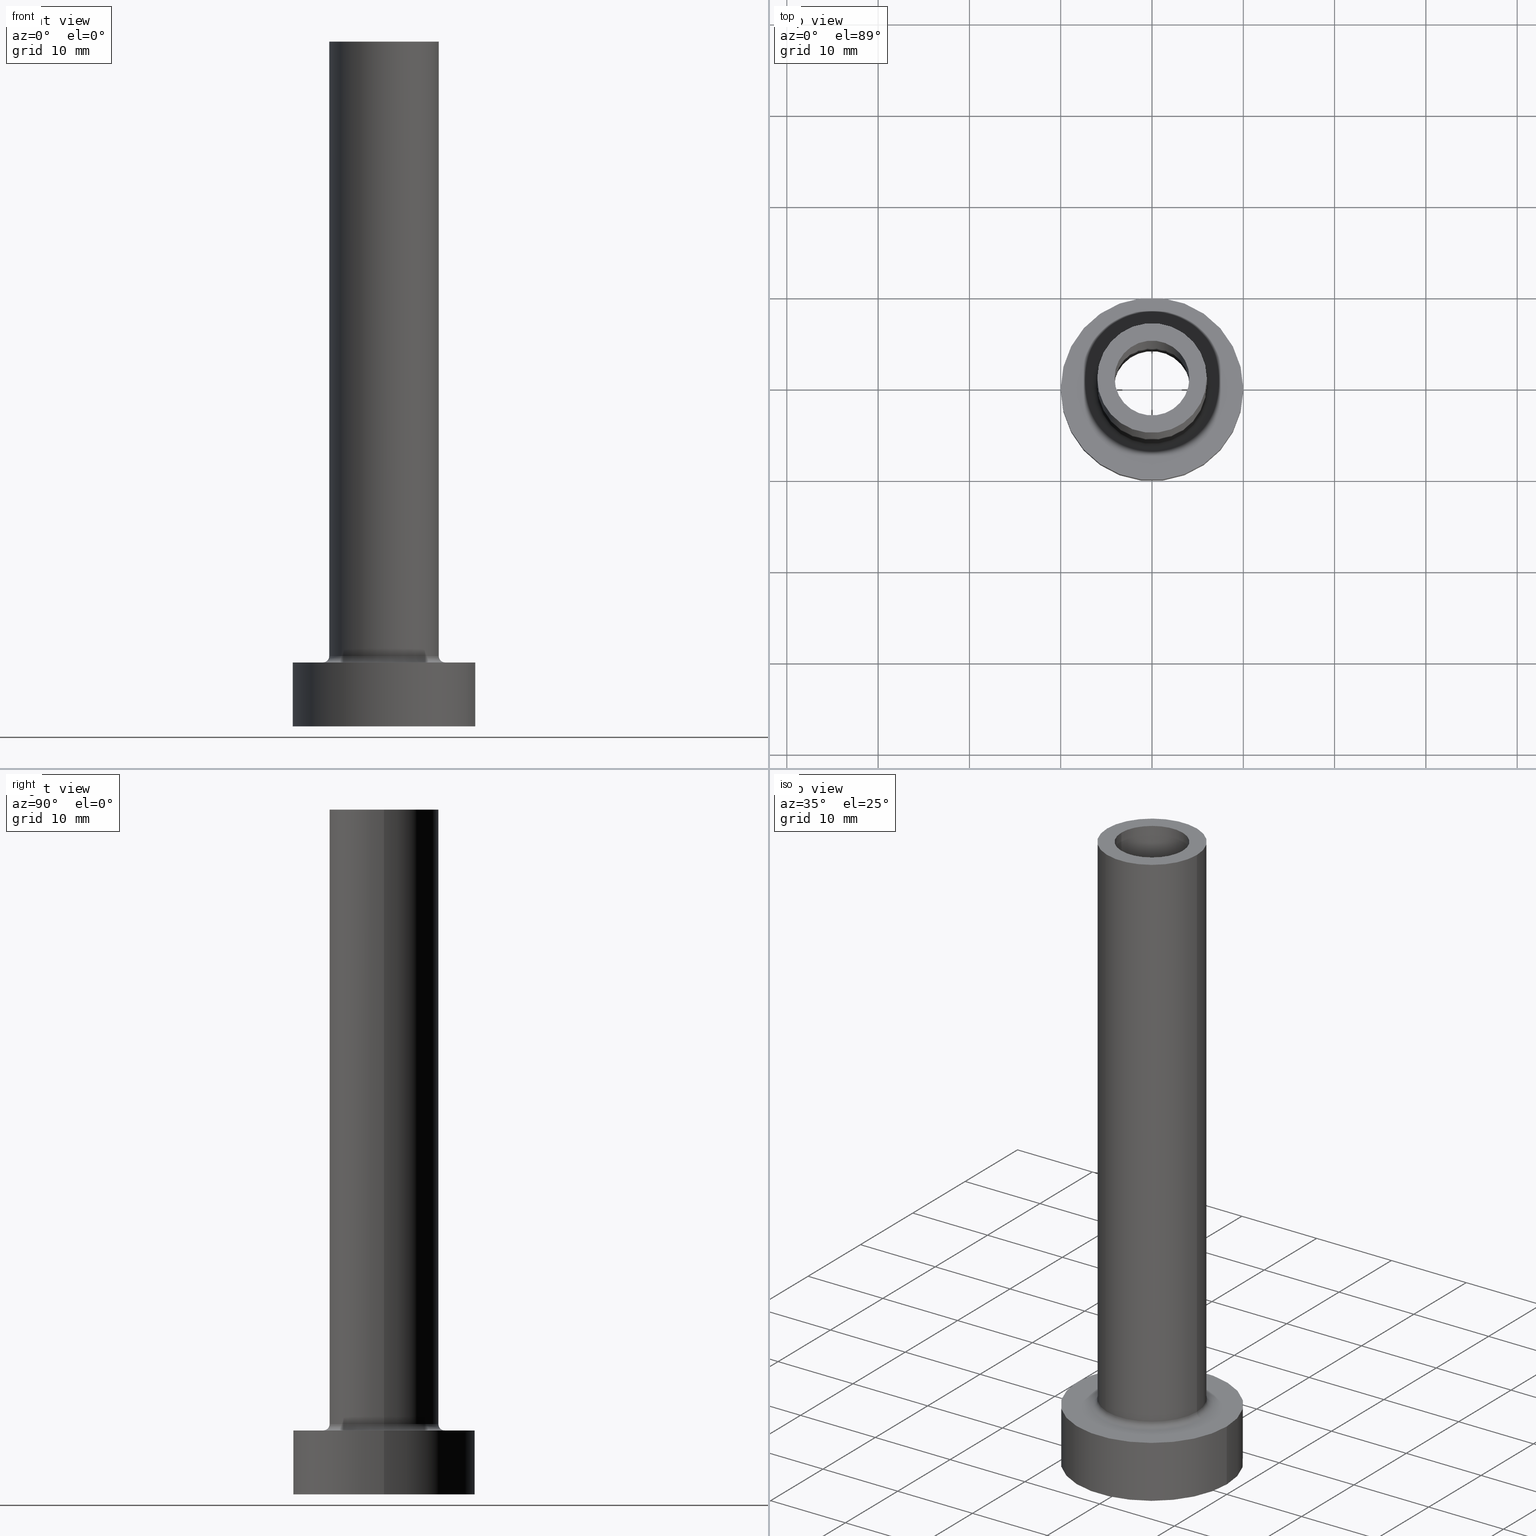
[diagram: canonical four-view strip — front | top / right | iso, engineering-drawing reading convention]
A machine part, canonical four-view strip (front | top / right | iso — engineering-drawing reading convention). The complete STEP part file that produces these views, byte-faithful:
ISO-10303-21;
HEADER;
FILE_DESCRIPTION (( 'STEP AP203' ),
    '1' );
FILE_NAME ('ef74.STEP',
    '2023-02-13T11:59:22',
    ( '' ),
    ( '' ),
    'SwSTEP 2.0',
    'SolidWorks 2019',
    '' );
FILE_SCHEMA (( 'CONFIG_CONTROL_DESIGN' ));
ENDSEC;

DATA;
#1 = EDGE_LOOP ( 'NONE', ( #144, #380 ) ) ;
#2 = AXIS2_PLACEMENT_3D ( 'NONE', #344, #457, #27 ) ;
#3 = APPLICATION_PROTOCOL_DEFINITION ( 'international standard', 'config_control_design', 1994, #97 ) ;
#4 = EDGE_LOOP ( 'NONE', ( #134, #103 ) ) ;
#5 = EDGE_CURVE ( 'NONE', #258, #30, #399, .T. ) ;
#6 = ORIENTED_EDGE ( 'NONE', *, *, #51, .F. ) ;
#7 = ORIENTED_EDGE ( 'NONE', *, *, #398, .F. ) ;
#8 = LINE ( 'NONE', #440, #222 ) ;
#9 = VECTOR ( 'NONE', #53, 1000.000000000000000 ) ;
#10 = SECURITY_CLASSIFICATION_LEVEL ( 'unclassified' ) ;
#11 = ORIENTED_EDGE ( 'NONE', *, *, #242, .F. ) ;
#12 = ORIENTED_EDGE ( 'NONE', *, *, #149, .F. ) ;
#13 = CALENDAR_DATE ( 2023, 13, 2 ) ;
#14 = ADVANCED_FACE ( 'NONE', ( #187, #79 ), #225, .F. ) ;
#15 = DIRECTION ( 'NONE',  ( 0.000000000000000000, 0.000000000000000000, 1.000000000000000000 ) ) ;
#16 = APPROVAL_ROLE ( '' ) ;
#17 = AXIS2_PLACEMENT_3D ( 'NONE', #108, #46, #397 ) ;
#18 = CARTESIAN_POINT ( 'NONE',  ( 6.700000000000001066, 0.000000000000000000, 7.699999999999998401 ) ) ;
#19 = APPROVAL_PERSON_ORGANIZATION ( #261, #315, #269 ) ;
#20 = ORIENTED_EDGE ( 'NONE', *, *, #224, .T. ) ;
#21 = DIRECTION ( 'NONE',  ( 1.000000000000000000, 0.000000000000000000, 0.000000000000000000 ) ) ;
#22 = CC_DESIGN_PERSON_AND_ORGANIZATION_ASSIGNMENT ( #161, #299, ( #287 ) ) ;
#23 = ORIENTED_EDGE ( 'NONE', *, *, #56, .F. ) ;
#24 = CARTESIAN_POINT ( 'NONE',  ( 0.000000000000000000, 0.000000000000000000, 7.000000000000000000 ) ) ;
#25 = EDGE_LOOP ( 'NONE', ( #249, #12, #191, #283 ) ) ;
#26 = AXIS2_PLACEMENT_3D ( 'NONE', #183, #394, #274 ) ;
#27 = DIRECTION ( 'NONE',  ( -1.000000000000000000, 0.000000000000000000, 0.000000000000000000 ) ) ;
#28 = AXIS2_PLACEMENT_3D ( 'NONE', #294, #167, #300 ) ;
#29 = CIRCLE ( 'NONE', #323, 4.250000000000000000 ) ;
#30 = VERTEX_POINT ( 'NONE', #77 ) ;
#31 = LINE ( 'NONE', #171, #336 ) ;
#32 = DIRECTION ( 'NONE',  ( 1.000000000000000000, 0.000000000000000000, -0.000000000000000000 ) ) ;
#33 = EDGE_LOOP ( 'NONE', ( #449, #130, #273, #107 ) ) ;
#34 = FACE_OUTER_BOUND ( 'NONE', #343, .T. ) ;
#35 = DIRECTION ( 'NONE',  ( 0.000000000000000000, 0.000000000000000000, -1.000000000000000000 ) ) ;
#36 = LINE ( 'NONE', #308, #379 ) ;
#37 = DIRECTION ( 'NONE',  ( -0.000000000000000000, -0.000000000000000000, -1.000000000000000000 ) ) ;
#38 = AXIS2_PLACEMENT_3D ( 'NONE', #377, #375, #267 ) ;
#39 = CC_DESIGN_SECURITY_CLASSIFICATION ( #237, ( #417 ) ) ;
#40 = CARTESIAN_POINT ( 'NONE',  ( 0.000000000000000000, 0.000000000000000000, 7.699999999999998401 ) ) ;
#41 = PERSON_AND_ORGANIZATION_ROLE ( 'creator' ) ;
#42 = AXIS2_PLACEMENT_3D ( 'NONE', #40, #426, #180 ) ;
#43 = EDGE_CURVE ( 'NONE', #414, #72, #155, .T. ) ;
#44 = PERSON ( 'NEUR�EN�', 'NEUR�EN�', 'NEUR�EN�', ('NEUR�EN�'), ('NEUR�EN�'), ('NEUR�EN�') ) ;
#45 = APPROVAL_STATUS ( 'not_yet_approved' ) ;
#46 = DIRECTION ( 'NONE',  ( -0.000000000000000000, -0.000000000000000000, -1.000000000000000000 ) ) ;
#47 = DIRECTION ( 'NONE',  ( -0.000000000000000000, -0.000000000000000000, -1.000000000000000000 ) ) ;
#48 = ORIENTED_EDGE ( 'NONE', *, *, #301, .F. ) ;
#49 = DIRECTION ( 'NONE',  ( 0.000000000000000000, 0.000000000000000000, -1.000000000000000000 ) ) ;
#50 = VERTEX_POINT ( 'NONE', #291 ) ;
#51 = EDGE_CURVE ( 'NONE', #112, #72, #248, .T. ) ;
#52 = APPROVAL_STATUS ( 'not_yet_approved' ) ;
#53 = DIRECTION ( 'NONE',  ( 0.000000000000000000, 0.000000000000000000, -1.000000000000000000 ) ) ;
#54 = DIRECTION ( 'NONE',  ( 0.000000000000000000, 0.000000000000000000, 1.000000000000000000 ) ) ;
#55 = ORIENTED_EDGE ( 'NONE', *, *, #210, .T. ) ;
#56 = EDGE_CURVE ( 'NONE', #204, #118, #233, .T. ) ;
#57 = PLANE ( 'NONE',  #356 ) ;
#58 = DIRECTION ( 'NONE',  ( 0.000000000000000000, 0.000000000000000000, 1.000000000000000000 ) ) ;
#59 = ORIENTED_EDGE ( 'NONE', *, *, #218, .F. ) ;
#60 = APPROVAL_DATE_TIME ( #175, #309 ) ;
#61 = VERTEX_POINT ( 'NONE', #359 ) ;
#62 = CIRCLE ( 'NONE', #276, 4.250000000000000000 ) ;
#63 = DIRECTION ( 'NONE',  ( 0.000000000000000000, 0.000000000000000000, 1.000000000000000000 ) ) ;
#64 = CARTESIAN_POINT ( 'NONE',  ( 6.700000000000001066, 0.000000000000000000, 6.999999999999999112 ) ) ;
#65 = ADVANCED_FACE ( 'NONE', ( #213, #354 ), #102, .F. ) ;
#66 = LINE ( 'NONE', #211, #446 ) ;
#67 = CARTESIAN_POINT ( 'NONE',  ( 0.000000000000000000, 0.000000000000000000, 30.00000000000001421 ) ) ;
#68 = CARTESIAN_POINT ( 'NONE',  ( -6.000000000000000888, 0.000000000000000000, 7.699999999999998401 ) ) ;
#69 = AXIS2_PLACEMENT_3D ( 'NONE', #282, #312, #143 ) ;
#70 = DIRECTION ( 'NONE',  ( -0.000000000000000000, -0.000000000000000000, -1.000000000000000000 ) ) ;
#71 = CARTESIAN_POINT ( 'NONE',  ( -10.00000000000000000, 0.000000000000000000, 0.000000000000000000 ) ) ;
#72 = VERTEX_POINT ( 'NONE', #68 ) ;
#73 = DIRECTION ( 'NONE',  ( -0.000000000000000000, -0.000000000000000000, -1.000000000000000000 ) ) ;
#74 = EDGE_CURVE ( 'NONE', #199, #204, #221, .T. ) ;
#75 = DATE_AND_TIME ( #435, #425 ) ;
#76 = FACE_OUTER_BOUND ( 'NONE', #25, .T. ) ;
#77 = CARTESIAN_POINT ( 'NONE',  ( 4.099999999999999645, 5.021051876504146399E-16, 75.00000000000001421 ) ) ;
#78 = APPROVAL_PERSON_ORGANIZATION ( #396, #100, #16 ) ;
#79 = FACE_OUTER_BOUND ( 'NONE', #4, .T. ) ;
#80 = DIRECTION ( 'NONE',  ( 1.000000000000000000, 0.000000000000000000, 0.000000000000000000 ) ) ;
#81 = CARTESIAN_POINT ( 'NONE',  ( 10.00000000000000000, 1.224646799147353256E-15, 0.000000000000000000 ) ) ;
#82 = TOROIDAL_SURFACE ( 'NONE', #345, 6.700000000000001066, 0.6999999999999999556 ) ;
#83 = PERSON_AND_ORGANIZATION ( #44, #147 ) ;
#84 = LOCAL_TIME ( 12, 59, 22.00000000000000000, #284 ) ;
#85 = CARTESIAN_POINT ( 'NONE',  ( 0.000000000000000000, 0.000000000000000000, 30.00000000000001421 ) ) ;
#86 = CC_DESIGN_PERSON_AND_ORGANIZATION_ASSIGNMENT ( #83, #182, ( #316 ) ) ;
#87 = FACE_OUTER_BOUND ( 'NONE', #196, .T. ) ;
#88 = CIRCLE ( 'NONE', #355, 0.7000000000000000666 ) ;
#89 = CARTESIAN_POINT ( 'NONE',  ( 0.000000000000000000, 0.000000000000000000, 7.000000000000000000 ) ) ;
#90 = ORIENTED_EDGE ( 'NONE', *, *, #365, .T. ) ;
#91 = VERTEX_POINT ( 'NONE', #64 ) ;
#92 =( LENGTH_UNIT ( ) NAMED_UNIT ( * ) SI_UNIT ( .MILLI., .METRE. ) );
#93 = ADVANCED_FACE ( 'NONE', ( #181 ), #387, .F. ) ;
#94 = CARTESIAN_POINT ( 'NONE',  ( 6.000000000000000888, 7.347880794884120722E-16, 7.699999999999998401 ) ) ;
#95 = DIRECTION ( 'NONE',  ( 0.000000000000000000, 0.000000000000000000, 1.000000000000000000 ) ) ;
#96 = AXIS2_PLACEMENT_3D ( 'NONE', #351, #101, #245 ) ;
#97 = APPLICATION_CONTEXT ( 'configuration controlled 3d designs of mechanical parts and assemblies' ) ;
#98 = CARTESIAN_POINT ( 'NONE',  ( -4.250000000000000000, 0.000000000000000000, 30.00000000000001421 ) ) ;
#99 = EDGE_LOOP ( 'NONE', ( #20, #90 ) ) ;
#100 = APPROVAL ( #52, 'NEUR�EN�' ) ;
#101 = DIRECTION ( 'NONE',  ( 0.000000000000000000, 0.000000000000000000, 1.000000000000000000 ) ) ;
#102 = PLANE ( 'NONE',  #307 ) ;
#103 = ORIENTED_EDGE ( 'NONE', *, *, #361, .F. ) ;
#104 = ORIENTED_EDGE ( 'NONE', *, *, #456, .T. ) ;
#105 = DIRECTION ( 'NONE',  ( 0.000000000000000000, 0.000000000000000000, 1.000000000000000000 ) ) ;
#106 = DIRECTION ( 'NONE',  ( 1.000000000000000000, 0.000000000000000000, 0.000000000000000000 ) ) ;
#107 = ORIENTED_EDGE ( 'NONE', *, *, #418, .F. ) ;
#108 = CARTESIAN_POINT ( 'NONE',  ( 0.000000000000000000, 0.000000000000000000, 75.00000000000001421 ) ) ;
#109 = DIRECTION ( 'NONE',  ( 1.000000000000000000, 0.000000000000000000, -0.000000000000000000 ) ) ;
#110 = AXIS2_PLACEMENT_3D ( 'NONE', #368, #49, #145 ) ;
#111 = CIRCLE ( 'NONE', #96, 6.000000000000000888 ) ;
#112 = VERTEX_POINT ( 'NONE', #94 ) ;
#113 = EDGE_CURVE ( 'NONE', #169, #112, #244, .T. ) ;
#114 = FACE_OUTER_BOUND ( 'NONE', #168, .T. ) ;
#115 = CALENDAR_DATE ( 2023, 13, 2 ) ;
#116 = DIRECTION ( 'NONE',  ( -1.000000000000000000, 1.224646799147353454E-16, 0.000000000000000000 ) ) ;
#117 = AXIS2_PLACEMENT_3D ( 'NONE', #401, #405, #109 ) ;
#118 = VERTEX_POINT ( 'NONE', #71 ) ;
#119 = MECHANICAL_CONTEXT ( 'NONE', #97, 'mechanical' ) ;
#120 = AXIS2_PLACEMENT_3D ( 'NONE', #137, #70, #459 ) ;
#121 = CARTESIAN_POINT ( 'NONE',  ( 0.000000000000000000, 0.000000000000000000, 0.000000000000000000 ) ) ;
#122 = ADVANCED_FACE ( 'NONE', ( #460 ), #82, .F. ) ;
#123 = ORIENTED_EDGE ( 'NONE', *, *, #56, .T. ) ;
#124 = MANIFOLD_SOLID_BREP ( 'Odebrat vysunut�m4', #271 ) ;
#125 = DATE_TIME_ROLE ( 'creation_date' ) ;
#126 = DIRECTION ( 'NONE',  ( 0.000000000000000000, 0.000000000000000000, 1.000000000000000000 ) ) ;
#127 = ORIENTED_EDGE ( 'NONE', *, *, #270, .T. ) ;
#128 = APPROVAL_STATUS ( 'not_yet_approved' ) ;
#129 = FACE_BOUND ( 'NONE', #268, .T. ) ;
#130 = ORIENTED_EDGE ( 'NONE', *, *, #423, .T. ) ;
#131 = COORDINATED_UNIVERSAL_TIME_OFFSET ( 1, 0, .AHEAD. ) ;
#132 = CARTESIAN_POINT ( 'NONE',  ( -10.00000000000000000, 0.000000000000000000, 7.000000000000000000 ) ) ;
#133 = AXIS2_PLACEMENT_3D ( 'NONE', #138, #275, #348 ) ;
#134 = ORIENTED_EDGE ( 'NONE', *, *, #210, .F. ) ;
#135 = PERSON_AND_ORGANIZATION ( #44, #147 ) ;
#136 = ADVANCED_FACE ( 'NONE', ( #281 ), #349, .F. ) ;
#137 = CARTESIAN_POINT ( 'NONE',  ( 0.000000000000000000, 0.000000000000000000, 7.000000000000000000 ) ) ;
#138 = CARTESIAN_POINT ( 'NONE',  ( 0.000000000000000000, 0.000000000000000000, 7.699999999999998401 ) ) ;
#139 = DIRECTION ( 'NONE',  ( 1.000000000000000000, 0.000000000000000000, 0.000000000000000000 ) ) ;
#140 = AXIS2_PLACEMENT_3D ( 'NONE', #189, #406, #80 ) ;
#141 = CC_DESIGN_APPROVAL ( #309, ( #237 ) ) ;
#142 = EDGE_CURVE ( 'NONE', #288, #370, #62, .T. ) ;
#143 = DIRECTION ( 'NONE',  ( 1.000000000000000000, 0.000000000000000000, -0.000000000000000000 ) ) ;
#144 = ORIENTED_EDGE ( 'NONE', *, *, #263, .F. ) ;
#145 = DIRECTION ( 'NONE',  ( -1.000000000000000000, 0.000000000000000000, 0.000000000000000000 ) ) ;
#146 = VERTEX_POINT ( 'NONE', #318 ) ;
#147 = ORGANIZATION ( 'NEUR�EN�', 'NEUR�EN�', '' ) ;
#148 = DIRECTION ( 'NONE',  ( 1.000000000000000000, 0.000000000000000000, 0.000000000000000000 ) ) ;
#149 = EDGE_CURVE ( 'NONE', #414, #169, #362, .T. ) ;
#150 = CARTESIAN_POINT ( 'NONE',  ( 0.000000000000000000, 0.000000000000000000, 0.000000000000000000 ) ) ;
#151 = ORIENTED_EDGE ( 'NONE', *, *, #218, .T. ) ;
#152 = ORIENTED_EDGE ( 'NONE', *, *, #142, .T. ) ;
#153 = VERTEX_POINT ( 'NONE', #193 ) ;
#154 = CC_DESIGN_PERSON_AND_ORGANIZATION_ASSIGNMENT ( #157, #293, ( #237 ) ) ;
#155 = LINE ( 'NONE', #367, #197 ) ;
#156 = VERTEX_POINT ( 'NONE', #81 ) ;
#157 = PERSON_AND_ORGANIZATION ( #44, #147 ) ;
#158 = VERTEX_POINT ( 'NONE', #259 ) ;
#159 = ADVANCED_FACE ( 'NONE', ( #76 ), #364, .T. ) ;
#160 = FACE_OUTER_BOUND ( 'NONE', #220, .T. ) ;
#161 = PERSON_AND_ORGANIZATION ( #44, #147 ) ;
#162 = AXIS2_PLACEMENT_3D ( 'NONE', #461, #105, #106 ) ;
#163 = TOROIDAL_SURFACE ( 'NONE', #133, 6.700000000000001066, 0.6999999999999999556 ) ;
#164 = APPLICATION_CONTEXT ( 'configuration controlled 3d designs of mechanical parts and assemblies' ) ;
#165 = CARTESIAN_POINT ( 'NONE',  ( 4.099999999999999645, 5.021051876504146399E-16, 75.00000000000001421 ) ) ;
#166 = ORIENTED_EDGE ( 'NONE', *, *, #423, .F. ) ;
#167 = DIRECTION ( 'NONE',  ( -0.000000000000000000, -0.000000000000000000, -1.000000000000000000 ) ) ;
#168 = EDGE_LOOP ( 'NONE', ( #341, #152, #350, #328 ) ) ;
#169 = VERTEX_POINT ( 'NONE', #366 ) ;
#170 = CIRCLE ( 'NONE', #433, 0.7000000000000000666 ) ;
#171 = CARTESIAN_POINT ( 'NONE',  ( 4.250000000000000000, 5.204748896376249713E-16, 42.02081528017131973 ) ) ;
#172 = DESIGN_CONTEXT ( 'detailed design', #164, 'design' ) ;
#173 =( GEOMETRIC_REPRESENTATION_CONTEXT ( 3 ) GLOBAL_UNCERTAINTY_ASSIGNED_CONTEXT ( ( #231 ) ) GLOBAL_UNIT_ASSIGNED_CONTEXT ( ( #92, #430, #317 ) ) REPRESENTATION_CONTEXT ( 'NONE', 'WORKASPACE' ) );
#174 = DIRECTION ( 'NONE',  ( 0.000000000000000000, 0.000000000000000000, 1.000000000000000000 ) ) ;
#175 = DATE_AND_TIME ( #240, #279 ) ;
#176 = EDGE_CURVE ( 'NONE', #158, #61, #424, .T. ) ;
#177 = DIRECTION ( 'NONE',  ( -0.000000000000000000, -0.000000000000000000, -1.000000000000000000 ) ) ;
#178 = AXIS2_PLACEMENT_3D ( 'NONE', #381, #335, #21 ) ;
#179 = AXIS2_PLACEMENT_3D ( 'NONE', #253, #219, #148 ) ;
#180 = DIRECTION ( 'NONE',  ( 1.000000000000000000, 0.000000000000000000, 0.000000000000000000 ) ) ;
#181 = FACE_OUTER_BOUND ( 'NONE', #33, .T. ) ;
#182 = PERSON_AND_ORGANIZATION_ROLE ( 'design_owner' ) ;
#183 = CARTESIAN_POINT ( 'NONE',  ( 0.000000000000000000, 0.000000000000000000, 7.000000000000000000 ) ) ;
#184 = EDGE_CURVE ( 'NONE', #258, #50, #8, .T. ) ;
#185 = VECTOR ( 'NONE', #37, 1000.000000000000000 ) ;
#186 = AXIS2_PLACEMENT_3D ( 'NONE', #306, #455, #310 ) ;
#187 = FACE_BOUND ( 'NONE', #1, .T. ) ;
#188 = EDGE_CURVE ( 'NONE', #50, #146, #278, .T. ) ;
#189 = CARTESIAN_POINT ( 'NONE',  ( 0.000000000000000000, 0.000000000000000000, 30.00000000000001421 ) ) ;
#190 = CIRCLE ( 'NONE', #178, 10.00000000000000000 ) ;
#191 = ORIENTED_EDGE ( 'NONE', *, *, #43, .T. ) ;
#192 = CALENDAR_DATE ( 2023, 13, 2 ) ;
#193 = CARTESIAN_POINT ( 'NONE',  ( -6.700000000000001066, 8.205133554287267548E-16, 6.999999999999999112 ) ) ;
#194 = EDGE_LOOP ( 'NONE', ( #48, #295 ) ) ;
#195 = CARTESIAN_POINT ( 'NONE',  ( 4.250000000000000000, 5.204748896376249713E-16, 30.00000000000001421 ) ) ;
#196 = EDGE_LOOP ( 'NONE', ( #226, #59, #123, #55 ) ) ;
#197 = VECTOR ( 'NONE', #47, 1000.000000000000000 ) ;
#198 = DIRECTION ( 'NONE',  ( 1.000000000000000000, 0.000000000000000000, 0.000000000000000000 ) ) ;
#199 = VERTEX_POINT ( 'NONE', #325 ) ;
#200 = DIRECTION ( 'NONE',  ( -0.000000000000000000, -0.000000000000000000, -1.000000000000000000 ) ) ;
#201 = ORIENTED_EDGE ( 'NONE', *, *, #365, .F. ) ;
#202 = FACE_OUTER_BOUND ( 'NONE', #331, .T. ) ;
#203 = ADVANCED_FACE ( 'NONE', ( #114 ), #227, .F. ) ;
#204 = VERTEX_POINT ( 'NONE', #132 ) ;
#205 = DIRECTION ( 'NONE',  ( 1.224646799147353207E-16, 1.000000000000000000, -0.000000000000000000 ) ) ;
#206 = ORIENTED_EDGE ( 'NONE', *, *, #184, .F. ) ;
#207 = CARTESIAN_POINT ( 'NONE',  ( 0.000000000000000000, 0.000000000000000000, 75.00000000000001421 ) ) ;
#208 = LOCAL_TIME ( 12, 59, 22.00000000000000000, #229 ) ;
#209 = CARTESIAN_POINT ( 'NONE',  ( 6.000000000000000888, 7.347880794884120722E-16, 75.00000000000001421 ) ) ;
#210 = EDGE_CURVE ( 'NONE', #118, #156, #190, .T. ) ;
#211 = CARTESIAN_POINT ( 'NONE',  ( -4.250000000000000000, 0.000000000000000000, 42.02081528017131973 ) ) ;
#212 = FACE_OUTER_BOUND ( 'NONE', #450, .T. ) ;
#213 = FACE_BOUND ( 'NONE', #232, .T. ) ;
#214 = FACE_OUTER_BOUND ( 'NONE', #265, .T. ) ;
#215 = CIRCLE ( 'NONE', #228, 4.250000000000000000 ) ;
#216 = APPROVAL_DATE_TIME ( #412, #315 ) ;
#217 = CARTESIAN_POINT ( 'NONE',  ( 0.000000000000000000, 0.000000000000000000, 7.699999999999998401 ) ) ;
#218 = EDGE_CURVE ( 'NONE', #204, #199, #378, .T. ) ;
#219 = DIRECTION ( 'NONE',  ( 0.000000000000000000, 0.000000000000000000, 1.000000000000000000 ) ) ;
#220 = EDGE_LOOP ( 'NONE', ( #292, #239 ) ) ;
#221 = CIRCLE ( 'NONE', #26, 10.00000000000000000 ) ;
#222 = VECTOR ( 'NONE', #404, 1000.000000000000000 ) ;
#223 = CC_DESIGN_APPROVAL ( #100, ( #287 ) ) ;
#224 = EDGE_CURVE ( 'NONE', #91, #153, #236, .T. ) ;
#225 = PLANE ( 'NONE',  #117 ) ;
#226 = ORIENTED_EDGE ( 'NONE', *, *, #456, .F. ) ;
#227 = CYLINDRICAL_SURFACE ( 'NONE', #110, 4.250000000000000000 ) ;
#228 = AXIS2_PLACEMENT_3D ( 'NONE', #121, #372, #198 ) ;
#229 = COORDINATED_UNIVERSAL_TIME_OFFSET ( 1, 0, .AHEAD. ) ;
#230 = CIRCLE ( 'NONE', #42, 6.000000000000000888 ) ;
#231 = UNCERTAINTY_MEASURE_WITH_UNIT (LENGTH_MEASURE( 1.000000000000000082E-05 ), #92, 'distance_accuracy_value', 'NONE');
#232 = EDGE_LOOP ( 'NONE', ( #420, #298 ) ) ;
#233 = LINE ( 'NONE', #340, #305 ) ;
#234 = CARTESIAN_POINT ( 'NONE',  ( -6.700000000000001066, 8.205133554287267548E-16, 7.699999999999998401 ) ) ;
#235 = SHAPE_DEFINITION_REPRESENTATION ( #427, #429 ) ;
#236 = CIRCLE ( 'NONE', #38, 6.700000000000001066 ) ;
#237 = SECURITY_CLASSIFICATION ( '', '', #10 ) ;
#238 = CC_DESIGN_PERSON_AND_ORGANIZATION_ASSIGNMENT ( #286, #329, ( #417 ) ) ;
#239 = ORIENTED_EDGE ( 'NONE', *, *, #374, .T. ) ;
#240 = CALENDAR_DATE ( 2023, 13, 2 ) ;
#241 = DIRECTION ( 'NONE',  ( 0.000000000000000000, 0.000000000000000000, 1.000000000000000000 ) ) ;
#242 = EDGE_CURVE ( 'NONE', #112, #91, #170, .T. ) ;
#243 = CIRCLE ( 'NONE', #285, 10.00000000000000000 ) ;
#244 = LINE ( 'NONE', #209, #185 ) ;
#245 = DIRECTION ( 'NONE',  ( 1.000000000000000000, 0.000000000000000000, 0.000000000000000000 ) ) ;
#246 = CARTESIAN_POINT ( 'NONE',  ( 0.000000000000000000, 0.000000000000000000, 0.000000000000000000 ) ) ;
#247 = DIRECTION ( 'NONE',  ( 1.000000000000000000, 0.000000000000000000, 0.000000000000000000 ) ) ;
#248 = CIRCLE ( 'NONE', #256, 6.000000000000000888 ) ;
#249 = ORIENTED_EDGE ( 'NONE', *, *, #113, .F. ) ;
#250 = CARTESIAN_POINT ( 'NONE',  ( -6.000000000000000888, 0.000000000000000000, 75.00000000000001421 ) ) ;
#251 = EDGE_CURVE ( 'NONE', #72, #153, #88, .T. ) ;
#252 = DIRECTION ( 'NONE',  ( -1.000000000000000000, 0.000000000000000000, 0.000000000000000000 ) ) ;
#253 = CARTESIAN_POINT ( 'NONE',  ( 0.000000000000000000, 0.000000000000000000, 0.000000000000000000 ) ) ;
#254 = ORIENTED_EDGE ( 'NONE', *, *, #361, .T. ) ;
#255 = ADVANCED_FACE ( 'NONE', ( #332 ), #410, .T. ) ;
#256 = AXIS2_PLACEMENT_3D ( 'NONE', #454, #54, #304 ) ;
#257 = AXIS2_PLACEMENT_3D ( 'NONE', #67, #63, #139 ) ;
#258 = VERTEX_POINT ( 'NONE', #443 ) ;
#259 = CARTESIAN_POINT ( 'NONE',  ( 4.250000000000000000, 5.204748896376249713E-16, 0.000000000000000000 ) ) ;
#260 = EDGE_LOOP ( 'NONE', ( #272, #444, #383, #330 ) ) ;
#261 = PERSON_AND_ORGANIZATION ( #44, #147 ) ;
#262 = AXIS2_PLACEMENT_3D ( 'NONE', #311, #35, #428 ) ;
#263 = EDGE_CURVE ( 'NONE', #61, #158, #215, .T. ) ;
#264 = LINE ( 'NONE', #165, #9 ) ;
#265 = EDGE_LOOP ( 'NONE', ( #360, #127, #432, #206 ) ) ;
#266 = CC_DESIGN_APPROVAL ( #315, ( #417 ) ) ;
#267 = DIRECTION ( 'NONE',  ( 1.000000000000000000, 0.000000000000000000, 0.000000000000000000 ) ) ;
#268 = EDGE_LOOP ( 'NONE', ( #337, #166 ) ) ;
#269 = APPROVAL_ROLE ( '' ) ;
#270 = EDGE_CURVE ( 'NONE', #30, #146, #264, .T. ) ;
#271 = CLOSED_SHELL ( 'NONE', ( #409, #136, #122, #334, #255, #327, #388, #14, #159, #321, #436, #203, #65, #93 ) ) ;
#272 = ORIENTED_EDGE ( 'NONE', *, *, #301, .T. ) ;
#273 = ORIENTED_EDGE ( 'NONE', *, *, #184, .T. ) ;
#274 = DIRECTION ( 'NONE',  ( 1.000000000000000000, 0.000000000000000000, 0.000000000000000000 ) ) ;
#275 = DIRECTION ( 'NONE',  ( 0.000000000000000000, 0.000000000000000000, 1.000000000000000000 ) ) ;
#276 = AXIS2_PLACEMENT_3D ( 'NONE', #458, #392, #357 ) ;
#277 = CARTESIAN_POINT ( 'NONE',  ( 0.000000000000000000, 0.000000000000000000, 75.00000000000001421 ) ) ;
#278 = CIRCLE ( 'NONE', #140, 4.099999999999999645 ) ;
#279 = LOCAL_TIME ( 12, 59, 22.00000000000000000, #131 ) ;
#280 = CYLINDRICAL_SURFACE ( 'NONE', #2, 4.099999999999999645 ) ;
#281 = FACE_OUTER_BOUND ( 'NONE', #260, .T. ) ;
#282 = CARTESIAN_POINT ( 'NONE',  ( 0.000000000000000000, 0.000000000000000000, 7.000000000000000000 ) ) ;
#283 = ORIENTED_EDGE ( 'NONE', *, *, #398, .T. ) ;
#284 = COORDINATED_UNIVERSAL_TIME_OFFSET ( 1, 0, .AHEAD. ) ;
#285 = AXIS2_PLACEMENT_3D ( 'NONE', #246, #241, #393 ) ;
#286 = PERSON_AND_ORGANIZATION ( #44, #147 ) ;
#287 = PRODUCT_DEFINITION ( 'NEZN�M�', '', #417, #172 ) ;
#288 = VERTEX_POINT ( 'NONE', #195 ) ;
#289 = DIRECTION ( 'NONE',  ( 1.000000000000000000, 0.000000000000000000, 0.000000000000000000 ) ) ;
#290 = DIRECTION ( 'NONE',  ( 0.000000000000000000, 0.000000000000000000, 1.000000000000000000 ) ) ;
#291 = CARTESIAN_POINT ( 'NONE',  ( -4.099999999999999645, 0.000000000000000000, 30.00000000000001421 ) ) ;
#292 = ORIENTED_EDGE ( 'NONE', *, *, #149, .T. ) ;
#293 = PERSON_AND_ORGANIZATION_ROLE ( 'classification_officer' ) ;
#294 = CARTESIAN_POINT ( 'NONE',  ( 0.000000000000000000, 0.000000000000000000, 7.000000000000000000 ) ) ;
#295 = ORIENTED_EDGE ( 'NONE', *, *, #142, .F. ) ;
#296 = CARTESIAN_POINT ( 'NONE',  ( 0.000000000000000000, 0.000000000000000000, 75.00000000000001421 ) ) ;
#297 = CIRCLE ( 'NONE', #363, 4.099999999999999645 ) ;
#298 = ORIENTED_EDGE ( 'NONE', *, *, #418, .T. ) ;
#299 = PERSON_AND_ORGANIZATION_ROLE ( 'creator' ) ;
#300 = DIRECTION ( 'NONE',  ( -1.000000000000000000, 0.000000000000000000, 0.000000000000000000 ) ) ;
#301 = EDGE_CURVE ( 'NONE', #370, #288, #29, .T. ) ;
#302 = ORIENTED_EDGE ( 'NONE', *, *, #251, .T. ) ;
#303 = CYLINDRICAL_SURFACE ( 'NONE', #434, 10.00000000000000000 ) ;
#304 = DIRECTION ( 'NONE',  ( 1.000000000000000000, 0.000000000000000000, 0.000000000000000000 ) ) ;
#305 = VECTOR ( 'NONE', #390, 1000.000000000000000 ) ;
#306 = CARTESIAN_POINT ( 'NONE',  ( 0.000000000000000000, 0.000000000000000000, 75.00000000000001421 ) ) ;
#307 = AXIS2_PLACEMENT_3D ( 'NONE', #431, #385, #32 ) ;
#308 = CARTESIAN_POINT ( 'NONE',  ( 10.00000000000000000, 1.224646799147353256E-15, 7.000000000000000000 ) ) ;
#309 = APPROVAL ( #128, 'NEUR�EN�' ) ;
#310 = DIRECTION ( 'NONE',  ( -1.000000000000000000, 0.000000000000000000, 0.000000000000000000 ) ) ;
#311 = CARTESIAN_POINT ( 'NONE',  ( 0.000000000000000000, 0.000000000000000000, 42.02081528017131973 ) ) ;
#312 = DIRECTION ( 'NONE',  ( 0.000000000000000000, 0.000000000000000000, 1.000000000000000000 ) ) ;
#313 = ORIENTED_EDGE ( 'NONE', *, *, #374, .F. ) ;
#314 = CIRCLE ( 'NONE', #120, 6.700000000000001066 ) ;
#315 = APPROVAL ( #45, 'NEUR�EN�' ) ;
#316 = PRODUCT ( 'ef74', 'ef74', '', ( #119 ) ) ;
#317 =( NAMED_UNIT ( * ) SI_UNIT ( $, .STERADIAN. ) SOLID_ANGLE_UNIT ( ) );
#318 = CARTESIAN_POINT ( 'NONE',  ( 4.099999999999999645, 5.021051876504146399E-16, 30.00000000000001421 ) ) ;
#319 = ORIENTED_EDGE ( 'NONE', *, *, #113, .T. ) ;
#320 = COORDINATED_UNIVERSAL_TIME_OFFSET ( 1, 0, .AHEAD. ) ;
#321 = ADVANCED_FACE ( 'NONE', ( #129, #160 ), #57, .T. ) ;
#322 = APPROVAL_DATE_TIME ( #75, #100 ) ;
#323 = AXIS2_PLACEMENT_3D ( 'NONE', #85, #15, #448 ) ;
#324 = CARTESIAN_POINT ( 'NONE',  ( 0.000000000000000000, 0.000000000000000000, 75.00000000000001421 ) ) ;
#325 = CARTESIAN_POINT ( 'NONE',  ( 10.00000000000000000, 1.224646799147353256E-15, 7.000000000000000000 ) ) ;
#326 = LOCAL_TIME ( 12, 59, 22.00000000000000000, #442 ) ;
#327 = ADVANCED_FACE ( 'NONE', ( #87 ), #303, .T. ) ;
#328 = ORIENTED_EDGE ( 'NONE', *, *, #263, .T. ) ;
#329 = PERSON_AND_ORGANIZATION_ROLE ( 'design_supplier' ) ;
#330 = ORIENTED_EDGE ( 'NONE', *, *, #353, .F. ) ;
#331 = EDGE_LOOP ( 'NONE', ( #313, #319, #376, #453 ) ) ;
#332 = FACE_OUTER_BOUND ( 'NONE', #411, .T. ) ;
#333 = APPLICATION_PROTOCOL_DEFINITION ( 'international standard', 'config_control_design', 1994, #164 ) ;
#334 = ADVANCED_FACE ( 'NONE', ( #202 ), #342, .T. ) ;
#335 = DIRECTION ( 'NONE',  ( 0.000000000000000000, 0.000000000000000000, 1.000000000000000000 ) ) ;
#336 = VECTOR ( 'NONE', #389, 1000.000000000000000 ) ;
#337 = ORIENTED_EDGE ( 'NONE', *, *, #5, .F. ) ;
#338 = APPROVAL_ROLE ( '' ) ;
#339 = DIRECTION ( 'NONE',  ( -1.000000000000000000, 0.000000000000000000, 0.000000000000000000 ) ) ;
#340 = CARTESIAN_POINT ( 'NONE',  ( -10.00000000000000000, 0.000000000000000000, 7.000000000000000000 ) ) ;
#341 = ORIENTED_EDGE ( 'NONE', *, *, #437, .F. ) ;
#342 = CYLINDRICAL_SURFACE ( 'NONE', #186, 6.000000000000000888 ) ;
#343 = EDGE_LOOP ( 'NONE', ( #151, #346 ) ) ;
#344 = CARTESIAN_POINT ( 'NONE',  ( 0.000000000000000000, 0.000000000000000000, 75.00000000000001421 ) ) ;
#345 = AXIS2_PLACEMENT_3D ( 'NONE', #217, #174, #247 ) ;
#346 = ORIENTED_EDGE ( 'NONE', *, *, #74, .T. ) ;
#347 = CC_DESIGN_DATE_AND_TIME_ASSIGNMENT ( #408, #371, ( #237 ) ) ;
#348 = DIRECTION ( 'NONE',  ( 1.000000000000000000, 0.000000000000000000, 0.000000000000000000 ) ) ;
#349 = CYLINDRICAL_SURFACE ( 'NONE', #262, 4.250000000000000000 ) ;
#350 = ORIENTED_EDGE ( 'NONE', *, *, #353, .T. ) ;
#351 = CARTESIAN_POINT ( 'NONE',  ( 0.000000000000000000, 0.000000000000000000, 75.00000000000001421 ) ) ;
#352 = DIRECTION ( 'NONE',  ( 0.000000000000000000, 0.000000000000000000, -1.000000000000000000 ) ) ;
#353 = EDGE_CURVE ( 'NONE', #370, #61, #66, .T. ) ;
#354 = FACE_OUTER_BOUND ( 'NONE', #194, .T. ) ;
#355 = AXIS2_PLACEMENT_3D ( 'NONE', #234, #205, #116 ) ;
#356 = AXIS2_PLACEMENT_3D ( 'NONE', #296, #126, #413 ) ;
#357 = DIRECTION ( 'NONE',  ( 1.000000000000000000, 0.000000000000000000, 0.000000000000000000 ) ) ;
#358 = PERSON_AND_ORGANIZATION ( #44, #147 ) ;
#359 = CARTESIAN_POINT ( 'NONE',  ( -4.250000000000000000, 0.000000000000000000, 0.000000000000000000 ) ) ;
#360 = ORIENTED_EDGE ( 'NONE', *, *, #5, .T. ) ;
#361 = EDGE_CURVE ( 'NONE', #156, #118, #243, .T. ) ;
#362 = CIRCLE ( 'NONE', #162, 6.000000000000000888 ) ;
#363 = AXIS2_PLACEMENT_3D ( 'NONE', #207, #95, #391 ) ;
#364 = CYLINDRICAL_SURFACE ( 'NONE', #17, 6.000000000000000888 ) ;
#365 = EDGE_CURVE ( 'NONE', #153, #91, #314, .T. ) ;
#366 = CARTESIAN_POINT ( 'NONE',  ( 6.000000000000000888, 7.347880794884120722E-16, 75.00000000000001421 ) ) ;
#367 = CARTESIAN_POINT ( 'NONE',  ( -6.000000000000000888, 0.000000000000000000, 75.00000000000001421 ) ) ;
#368 = CARTESIAN_POINT ( 'NONE',  ( 0.000000000000000000, 0.000000000000000000, 42.02081528017131973 ) ) ;
#369 = APPROVAL_PERSON_ORGANIZATION ( #135, #309, #338 ) ;
#370 = VERTEX_POINT ( 'NONE', #98 ) ;
#371 = DATE_TIME_ROLE ( 'classification_date' ) ;
#372 = DIRECTION ( 'NONE',  ( -0.000000000000000000, -0.000000000000000000, -1.000000000000000000 ) ) ;
#373 = ORIENTED_EDGE ( 'NONE', *, *, #74, .F. ) ;
#374 = EDGE_CURVE ( 'NONE', #169, #414, #111, .T. ) ;
#375 = DIRECTION ( 'NONE',  ( -0.000000000000000000, -0.000000000000000000, -1.000000000000000000 ) ) ;
#376 = ORIENTED_EDGE ( 'NONE', *, *, #51, .T. ) ;
#377 = CARTESIAN_POINT ( 'NONE',  ( 0.000000000000000000, 0.000000000000000000, 7.000000000000000000 ) ) ;
#378 = CIRCLE ( 'NONE', #439, 10.00000000000000000 ) ;
#379 = VECTOR ( 'NONE', #177, 1000.000000000000000 ) ;
#380 = ORIENTED_EDGE ( 'NONE', *, *, #176, .F. ) ;
#381 = CARTESIAN_POINT ( 'NONE',  ( 0.000000000000000000, 0.000000000000000000, 0.000000000000000000 ) ) ;
#382 = PRODUCT_RELATED_PRODUCT_CATEGORY ( 'detail', '', ( #316 ) ) ;
#383 = ORIENTED_EDGE ( 'NONE', *, *, #176, .T. ) ;
#384 = PLANE ( 'NONE',  #69 ) ;
#385 = DIRECTION ( 'NONE',  ( 0.000000000000000000, 0.000000000000000000, 1.000000000000000000 ) ) ;
#386 = CIRCLE ( 'NONE', #257, 4.099999999999999645 ) ;
#387 = CYLINDRICAL_SURFACE ( 'NONE', #400, 4.099999999999999645 ) ;
#388 = ADVANCED_FACE ( 'NONE', ( #421, #34 ), #384, .T. ) ;
#389 = DIRECTION ( 'NONE',  ( 0.000000000000000000, 0.000000000000000000, -1.000000000000000000 ) ) ;
#390 = DIRECTION ( 'NONE',  ( -0.000000000000000000, -0.000000000000000000, -1.000000000000000000 ) ) ;
#391 = DIRECTION ( 'NONE',  ( 1.000000000000000000, 0.000000000000000000, 0.000000000000000000 ) ) ;
#392 = DIRECTION ( 'NONE',  ( 0.000000000000000000, 0.000000000000000000, 1.000000000000000000 ) ) ;
#393 = DIRECTION ( 'NONE',  ( 1.000000000000000000, 0.000000000000000000, 0.000000000000000000 ) ) ;
#394 = DIRECTION ( 'NONE',  ( 0.000000000000000000, 0.000000000000000000, 1.000000000000000000 ) ) ;
#395 = EDGE_LOOP ( 'NONE', ( #7, #302, #402, #11 ) ) ;
#396 = PERSON_AND_ORGANIZATION ( #44, #147 ) ;
#397 = DIRECTION ( 'NONE',  ( -1.000000000000000000, 0.000000000000000000, 0.000000000000000000 ) ) ;
#398 = EDGE_CURVE ( 'NONE', #72, #112, #230, .T. ) ;
#399 = CIRCLE ( 'NONE', #451, 4.099999999999999645 ) ;
#400 = AXIS2_PLACEMENT_3D ( 'NONE', #277, #422, #252 ) ;
#401 = CARTESIAN_POINT ( 'NONE',  ( 0.000000000000000000, 0.000000000000000000, 0.000000000000000000 ) ) ;
#402 = ORIENTED_EDGE ( 'NONE', *, *, #224, .F. ) ;
#403 = CC_DESIGN_DATE_AND_TIME_ASSIGNMENT ( #447, #125, ( #287 ) ) ;
#404 = DIRECTION ( 'NONE',  ( 0.000000000000000000, 0.000000000000000000, -1.000000000000000000 ) ) ;
#405 = DIRECTION ( 'NONE',  ( 0.000000000000000000, 0.000000000000000000, 1.000000000000000000 ) ) ;
#406 = DIRECTION ( 'NONE',  ( 0.000000000000000000, 0.000000000000000000, 1.000000000000000000 ) ) ;
#407 = ORIENTED_EDGE ( 'NONE', *, *, #242, .T. ) ;
#408 = DATE_AND_TIME ( #115, #326 ) ;
#409 = ADVANCED_FACE ( 'NONE', ( #214 ), #280, .F. ) ;
#410 = CYLINDRICAL_SURFACE ( 'NONE', #28, 10.00000000000000000 ) ;
#411 = EDGE_LOOP ( 'NONE', ( #373, #104, #254, #23 ) ) ;
#412 = DATE_AND_TIME ( #192, #208 ) ;
#413 = DIRECTION ( 'NONE',  ( 1.000000000000000000, 0.000000000000000000, -0.000000000000000000 ) ) ;
#414 = VERTEX_POINT ( 'NONE', #250 ) ;
#415 = DIRECTION ( 'NONE',  ( 0.000000000000000000, 0.000000000000000000, -1.000000000000000000 ) ) ;
#416 = AXIS2_PLACEMENT_3D ( 'NONE', #150, #73, #441 ) ;
#417 = PRODUCT_DEFINITION_FORMATION_WITH_SPECIFIED_SOURCE ( 'LIBOVOLN�', '', #316, .NOT_KNOWN. ) ;
#418 = EDGE_CURVE ( 'NONE', #146, #50, #386, .T. ) ;
#419 = DIRECTION ( 'NONE',  ( 0.000000000000000000, -1.000000000000000000, 0.000000000000000000 ) ) ;
#420 = ORIENTED_EDGE ( 'NONE', *, *, #188, .T. ) ;
#421 = FACE_BOUND ( 'NONE', #99, .T. ) ;
#422 = DIRECTION ( 'NONE',  ( 0.000000000000000000, 0.000000000000000000, -1.000000000000000000 ) ) ;
#423 = EDGE_CURVE ( 'NONE', #30, #258, #297, .T. ) ;
#424 = CIRCLE ( 'NONE', #416, 4.250000000000000000 ) ;
#425 = LOCAL_TIME ( 12, 59, 22.00000000000000000, #320 ) ;
#426 = DIRECTION ( 'NONE',  ( 0.000000000000000000, 0.000000000000000000, 1.000000000000000000 ) ) ;
#427 = PRODUCT_DEFINITION_SHAPE ( 'NONE', 'NONE',  #287 ) ;
#428 = DIRECTION ( 'NONE',  ( -1.000000000000000000, 0.000000000000000000, 0.000000000000000000 ) ) ;
#429 = ADVANCED_BREP_SHAPE_REPRESENTATION ( 'ef74', ( #124, #179 ), #173 ) ;
#430 =( NAMED_UNIT ( * ) PLANE_ANGLE_UNIT ( ) SI_UNIT ( $, .RADIAN. ) );
#431 = CARTESIAN_POINT ( 'NONE',  ( 0.000000000000000000, 0.000000000000000000, 30.00000000000001421 ) ) ;
#432 = ORIENTED_EDGE ( 'NONE', *, *, #188, .F. ) ;
#433 = AXIS2_PLACEMENT_3D ( 'NONE', #18, #419, #415 ) ;
#434 = AXIS2_PLACEMENT_3D ( 'NONE', #89, #200, #339 ) ;
#435 = CALENDAR_DATE ( 2023, 13, 2 ) ;
#436 = ADVANCED_FACE ( 'NONE', ( #212 ), #163, .F. ) ;
#437 = EDGE_CURVE ( 'NONE', #288, #158, #31, .T. ) ;
#438 = ORIENTED_EDGE ( 'NONE', *, *, #251, .F. ) ;
#439 = AXIS2_PLACEMENT_3D ( 'NONE', #24, #58, #452 ) ;
#440 = CARTESIAN_POINT ( 'NONE',  ( -4.099999999999999645, 0.000000000000000000, 75.00000000000001421 ) ) ;
#441 = DIRECTION ( 'NONE',  ( 1.000000000000000000, 0.000000000000000000, 0.000000000000000000 ) ) ;
#442 = COORDINATED_UNIVERSAL_TIME_OFFSET ( 1, 0, .AHEAD. ) ;
#443 = CARTESIAN_POINT ( 'NONE',  ( -4.099999999999999645, 0.000000000000000000, 75.00000000000001421 ) ) ;
#444 = ORIENTED_EDGE ( 'NONE', *, *, #437, .T. ) ;
#445 = CC_DESIGN_PERSON_AND_ORGANIZATION_ASSIGNMENT ( #358, #41, ( #417 ) ) ;
#446 = VECTOR ( 'NONE', #352, 1000.000000000000000 ) ;
#447 = DATE_AND_TIME ( #13, #84 ) ;
#448 = DIRECTION ( 'NONE',  ( 1.000000000000000000, 0.000000000000000000, 0.000000000000000000 ) ) ;
#449 = ORIENTED_EDGE ( 'NONE', *, *, #270, .F. ) ;
#450 = EDGE_LOOP ( 'NONE', ( #438, #6, #407, #201 ) ) ;
#451 = AXIS2_PLACEMENT_3D ( 'NONE', #324, #290, #289 ) ;
#452 = DIRECTION ( 'NONE',  ( 1.000000000000000000, 0.000000000000000000, 0.000000000000000000 ) ) ;
#453 = ORIENTED_EDGE ( 'NONE', *, *, #43, .F. ) ;
#454 = CARTESIAN_POINT ( 'NONE',  ( 0.000000000000000000, 0.000000000000000000, 7.699999999999998401 ) ) ;
#455 = DIRECTION ( 'NONE',  ( -0.000000000000000000, -0.000000000000000000, -1.000000000000000000 ) ) ;
#456 = EDGE_CURVE ( 'NONE', #199, #156, #36, .T. ) ;
#457 = DIRECTION ( 'NONE',  ( 0.000000000000000000, 0.000000000000000000, -1.000000000000000000 ) ) ;
#458 = CARTESIAN_POINT ( 'NONE',  ( 0.000000000000000000, 0.000000000000000000, 30.00000000000001421 ) ) ;
#459 = DIRECTION ( 'NONE',  ( 1.000000000000000000, 0.000000000000000000, 0.000000000000000000 ) ) ;
#460 = FACE_OUTER_BOUND ( 'NONE', #395, .T. ) ;
#461 = CARTESIAN_POINT ( 'NONE',  ( 0.000000000000000000, 0.000000000000000000, 75.00000000000001421 ) ) ;
ENDSEC;
END-ISO-10303-21;
